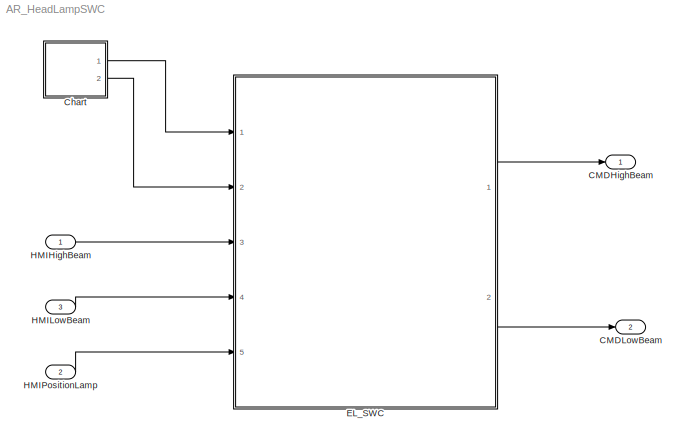
MODEL AR_HeadLampSWC
KIND model
BLOCK [Outport] CMDHighBeam
  IconDisplay = Port number
  SID = 28
BLOCK [Outport] CMDLowBeam
  IconDisplay = Port number
  Port = 2
  SID = 30
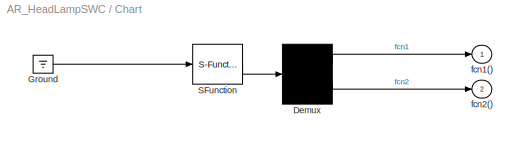
BLOCK [SubSystem] Chart
  ErrorFcn = Stateflow.Translate.translate
  FunctionWithSeparateData = off
  MaskHideContents = off
  MinAlgLoopOccurrences = off
  Opaque = off
  PermitHierarchicalResolution = ExplicitOnly
  Ports = [0, 2]
  PropExecContextOutsideSubsystem = off
  RTWSystemCode = Auto
  RequestExecContextInheritance = off
  SFBlockType = Chart
  SID = 64
  TreatAsAtomicUnit = on
BLOCK [Demux] Chart/ Demux 
  Outputs = 2
  Ports = [1, 2]
  SID = 64::38
BLOCK [Ground] Chart/ Ground 
  SID = 64::39
BLOCK [S-Function] Chart/ SFunction 
  EnableBusSupport = on
  FunctionName = sf_sfun
  PortCounts = [1 1]
  Ports = [1, 1]
  SID = 64::37
  Tag = Stateflow S-Function AR_HeadLampSWC 1
BLOCK [Outport] Chart/fcn1()
  IconDisplay = Port number
  SID = 64::41
BLOCK [Outport] Chart/fcn2()
  IconDisplay = Port number
  Port = 2
  SID = 64::42
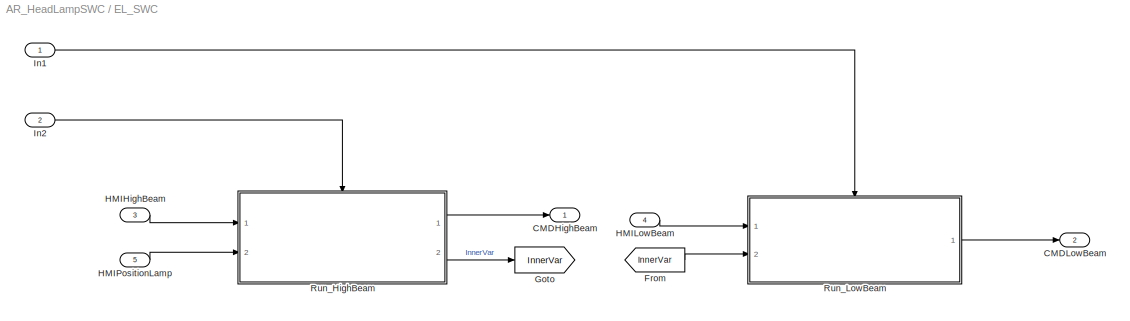
BLOCK [SubSystem] EL_SWC
  FunctionWithSeparateData = off
  MaskHideContents = off
  MinAlgLoopOccurrences = off
  Opaque = off
  Ports = [5, 2]
  PropExecContextOutsideSubsystem = off
  RTWSystemCode = Auto
  RequestExecContextInheritance = off
  SID = 47
BLOCK [Outport] EL_SWC/CMDHighBeam
  IconDisplay = Port number
  SID = 53
BLOCK [Outport] EL_SWC/CMDLowBeam
  IconDisplay = Port number
  Port = 2
  SID = 54
BLOCK [From] EL_SWC/From
  GotoTag = InnerVar
  SID = 55
BLOCK [Goto] EL_SWC/Goto
  GotoTag = InnerVar
  SID = 56
BLOCK [Inport] EL_SWC/HMIHighBeam
  IconDisplay = Port number
  Port = 3
  SID = 50
BLOCK [Inport] EL_SWC/HMILowBeam
  IconDisplay = Port number
  Port = 4
  SID = 51
BLOCK [Inport] EL_SWC/HMIPositionLamp
  IconDisplay = Port number
  Port = 5
  SID = 52
BLOCK [Inport] EL_SWC/In1
  IconDisplay = Port number
  SID = 48
BLOCK [Inport] EL_SWC/In2
  IconDisplay = Port number
  Port = 2
  SID = 61
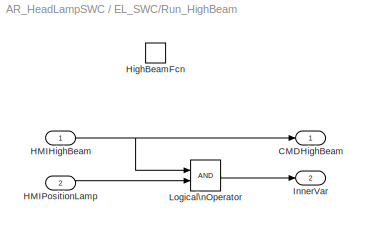
BLOCK [SubSystem] EL_SWC/Run_HighBeam
  FunctionWithSeparateData = off
  MaskHideContents = off
  MinAlgLoopOccurrences = off
  Opaque = off
  Ports = [2, 2, 0, 1]
  PropExecContextOutsideSubsystem = off
  RTWSystemCode = Auto
  RequestExecContextInheritance = off
  SID = 1
  TreatAsAtomicUnit = on
BLOCK [Outport] EL_SWC/Run_HighBeam/CMDHighBeam
  IconDisplay = Port number
  SID = 4
BLOCK [Inport] EL_SWC/Run_HighBeam/HMIHighBeam
  IconDisplay = Port number
  SID = 2
BLOCK [Inport] EL_SWC/Run_HighBeam/HMIPositionLamp
  IconDisplay = Port number
  Port = 2
  SID = 9
BLOCK [TriggerPort] EL_SWC/Run_HighBeam/HighBeamFcn
  Ports = []
  SID = 3
  StatesWhenEnabling = held
  TriggerType = function-call
BLOCK [Outport] EL_SWC/Run_HighBeam/InnerVar
  IconDisplay = Port number
  Port = 2
  SID = 35
BLOCK [Logic] EL_SWC/Run_HighBeam/Logical\nOperator
  AllPortsSameDT = off
  OutDataTypeStr = boolean
  Ports = [2, 1]
  SID = 43
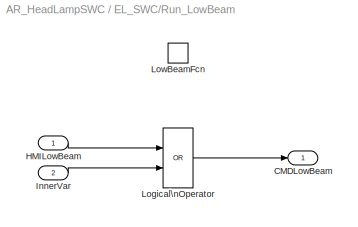
BLOCK [SubSystem] EL_SWC/Run_LowBeam
  FunctionWithSeparateData = off
  MaskHideContents = off
  MinAlgLoopOccurrences = off
  Opaque = off
  Ports = [2, 1, 0, 1]
  PropExecContextOutsideSubsystem = off
  RTWSystemCode = Auto
  RequestExecContextInheritance = off
  SID = 5
  TreatAsAtomicUnit = on
BLOCK [Outport] EL_SWC/Run_LowBeam/CMDLowBeam
  IconDisplay = Port number
  SID = 8
BLOCK [Inport] EL_SWC/Run_LowBeam/HMILowBeam
  IconDisplay = Port number
  SID = 6
BLOCK [Inport] EL_SWC/Run_LowBeam/InnerVar
  IconDisplay = Port number
  Port = 2
  SID = 38
BLOCK [Logic] EL_SWC/Run_LowBeam/Logical\nOperator
  AllPortsSameDT = off
  Operator = OR
  OutDataTypeStr = boolean
  Ports = [2, 1]
  SID = 44
BLOCK [TriggerPort] EL_SWC/Run_LowBeam/LowBeamFcn
  Ports = []
  SID = 7
  StatesWhenEnabling = held
  TriggerType = function-call
BLOCK [Inport] HMIHighBeam
  IconDisplay = Port number
  SID = 19
BLOCK [Inport] HMILowBeam
  IconDisplay = Port number
  Port = 3
  SID = 24
BLOCK [Inport] HMIPositionLamp
  IconDisplay = Port number
  Port = 2
  SID = 21
LINE Chart/ Demux :1 -> Chart/fcn1():1
LINE Chart/ Demux :2 -> Chart/fcn2():1
LINE Chart/ Ground :1 -> Chart/ SFunction :1
LINE Chart/ SFunction :1 -> Chart/ Demux :1
LINE Chart:1 -> EL_SWC:1
LINE Chart:2 -> EL_SWC:2
LINE EL_SWC/From:1 -> EL_SWC/Run_LowBeam:2
LINE EL_SWC/HMIHighBeam:1 -> EL_SWC/Run_HighBeam:1
LINE EL_SWC/HMILowBeam:1 -> EL_SWC/Run_LowBeam:1
LINE EL_SWC/HMIPositionLamp:1 -> EL_SWC/Run_HighBeam:2
LINE EL_SWC/In1:1 -> EL_SWC/Run_LowBeam:trigger
LINE EL_SWC/In2:1 -> EL_SWC/Run_HighBeam:trigger
NET EL_SWC/Run_HighBeam/HMIHighBeam:1 -> EL_SWC/Run_HighBeam/CMDHighBeam:1, EL_SWC/Run_HighBeam/Logical\nOperator:1
LINE EL_SWC/Run_HighBeam/HMIPositionLamp:1 -> EL_SWC/Run_HighBeam/Logical\nOperator:2
LINE EL_SWC/Run_HighBeam/Logical\nOperator:1 -> EL_SWC/Run_HighBeam/InnerVar:1
LINE EL_SWC/Run_HighBeam:1 -> EL_SWC/CMDHighBeam:1
LINE EL_SWC/Run_HighBeam:2 -> EL_SWC/Goto:1
LINE EL_SWC/Run_LowBeam/HMILowBeam:1 -> EL_SWC/Run_LowBeam/Logical\nOperator:1
LINE EL_SWC/Run_LowBeam/InnerVar:1 -> EL_SWC/Run_LowBeam/Logical\nOperator:2
LINE EL_SWC/Run_LowBeam/Logical\nOperator:1 -> EL_SWC/Run_LowBeam/CMDLowBeam:1
LINE EL_SWC/Run_LowBeam:1 -> EL_SWC/CMDLowBeam:1
LINE EL_SWC:1 -> CMDHighBeam:1
LINE EL_SWC:2 -> CMDLowBeam:1
LINE HMIHighBeam:1 -> EL_SWC:3
LINE HMILowBeam:1 -> EL_SWC:4
LINE HMIPositionLamp:1 -> EL_SWC:5
note: NET lines group one-source signal fan-out (src -> all destinations, sorted); 1:1 wires keep LINE
CHART Chart states=0 transitions=2
